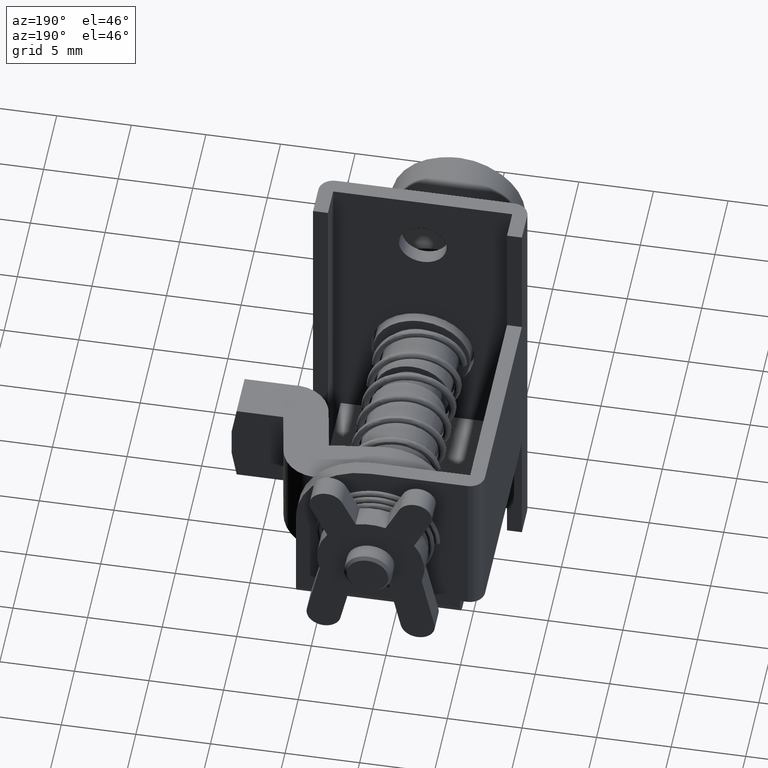
[diagram: clean part render]
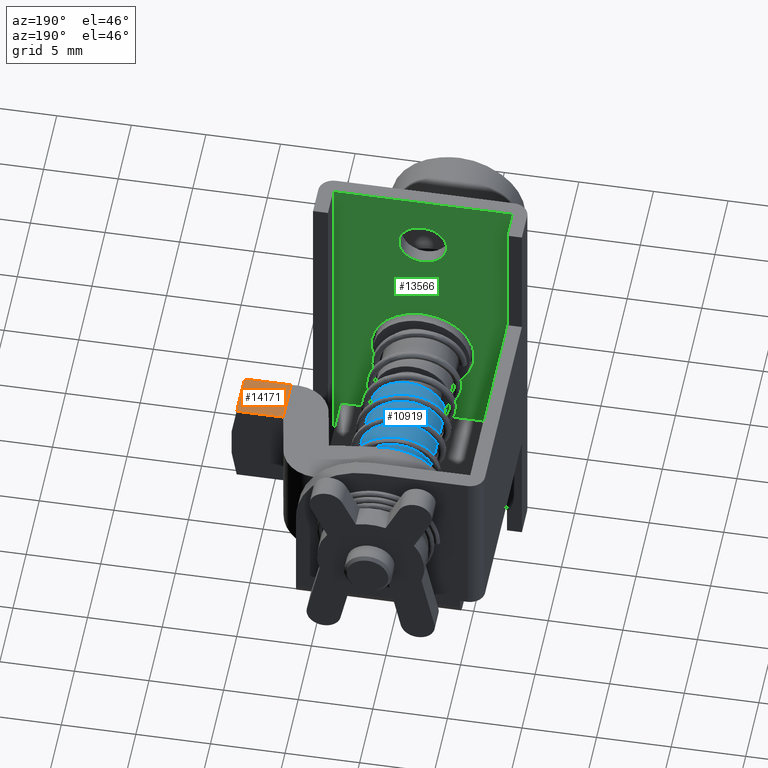
[diagram: same view with three faces highlighted in distinct colors, each labeled with its STEP entity id]
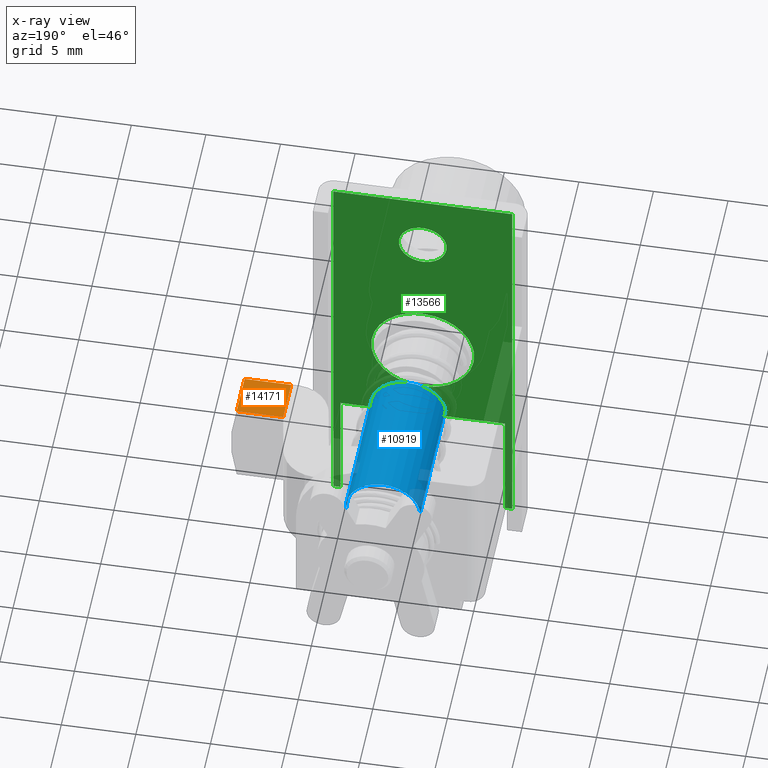
[diagram: x-ray of the same camera — body ghosted, the three highlighted faces saturated]
A machine part, auxiliary view with three faces highlighted in distinct colors.
The next image is the same camera in x-ray (body ghosted, the three faces saturated) — at least one of them is partly hidden behind the body in this view.
Their STEP definitions:

[orange] entity #14171 — the highlighted face is a freeform B-spline surface patch.
#14105=CARTESIAN_POINT('',(8.500000000000000,-10.618950038622319,3.000000000000130));
#14106=VERTEX_POINT('',#14105);
#14107=CARTESIAN_POINT('',(11.500000000000000,-10.618950038622319,3.000000000000130));
#14108=VERTEX_POINT('',#14107);
#14109=CARTESIAN_POINT('',(8.500000000000000,-10.618950038622319,3.000000000000130));
#14110=CARTESIAN_POINT('',(11.500000000000000,-10.618950038622319,3.000000000000130));
#14111=QUASI_UNIFORM_CURVE('',1,(#14109,#14110),.UNSPECIFIED.,.F.,.U.);
#14112=EDGE_CURVE('',#14106,#14108,#14111,.T.);
#14144=CARTESIAN_POINT('',(8.350150005814582,-10.774741440614021,3.000000000000131));
#14145=CARTESIAN_POINT('',(11.649850074651690,-10.774741440614021,3.000000000000131));
#14146=CARTESIAN_POINT('',(8.350150005814582,-7.344208374923612,3.000000000000130));
#14147=CARTESIAN_POINT('',(11.649850074651690,-7.344208374923612,3.000000000000130));
#14148=B_SPLINE_SURFACE_WITH_KNOTS('',1,1,((#14144,#14146),(#14145,#14147)),.UNSPECIFIED.,.F.,.F.,.U.,(2,2),(2,2),(0.0,3.299700068837108),(0.0,3.430533065690405),.UNSPECIFIED.);
#14149=CARTESIAN_POINT('',(8.500000000000000,-7.500000000000110,3.000000000000130));
#14150=VERTEX_POINT('',#14149);
#14151=CARTESIAN_POINT('',(11.500000000000000,-7.500000000000000,3.000000000000115));
#14152=VERTEX_POINT('',#14151);
#14153=CARTESIAN_POINT('',(8.500000000000000,-7.500000000000110,3.000000000000130));
#14154=CARTESIAN_POINT('',(11.500000000000000,-7.500000000000000,3.000000000000115));
#14155=QUASI_UNIFORM_CURVE('',1,(#14153,#14154),.UNSPECIFIED.,.F.,.U.);
#14156=EDGE_CURVE('',#14150,#14152,#14155,.T.);
#14157=ORIENTED_EDGE('',*,*,#14156,.F.);
#14158=CARTESIAN_POINT('',(8.500000000000000,-7.500000000000110,3.000000000000130));
#14159=CARTESIAN_POINT('',(8.500000000000000,-10.618950038622319,3.000000000000130));
#14160=QUASI_UNIFORM_CURVE('',1,(#14158,#14159),.UNSPECIFIED.,.F.,.U.);
#14161=EDGE_CURVE('',#14150,#14106,#14160,.T.);
#14162=ORIENTED_EDGE('',*,*,#14161,.T.);
#14163=ORIENTED_EDGE('',*,*,#14112,.T.);
#14164=CARTESIAN_POINT('',(11.500000000000000,-7.500000000000000,3.000000000000115));
#14165=CARTESIAN_POINT('',(11.500000000000000,-10.618950038622319,3.000000000000130));
#14166=QUASI_UNIFORM_CURVE('',1,(#14164,#14165),.UNSPECIFIED.,.F.,.U.);
#14167=EDGE_CURVE('',#14152,#14108,#14166,.T.);
#14168=ORIENTED_EDGE('',*,*,#14167,.F.);
#14169=EDGE_LOOP('',(#14157,#14162,#14163,#14168));
#14170=FACE_OUTER_BOUND('',#14169,.T.);
#14171=ADVANCED_FACE('',(#14170),#14148,.T.);

[blue] entity #10919 — the highlighted face is a freeform B-spline surface patch.
#10756=CARTESIAN_POINT('',(16.0,2.482523815907322,0.295085586657391));
#10757=VERTEX_POINT('',#10756);
#10775=CARTESIAN_POINT('',(16.0,-2.495336996051754,-0.152621348884807));
#10776=VERTEX_POINT('',#10775);
#10790=CARTESIAN_POINT('',(6.500000000000000,-2.495336996051754,-0.152621348884807));
#10791=VERTEX_POINT('',#10790);
#10792=CARTESIAN_POINT('',(16.0,-2.495336996051754,-0.152621348884807));
#10793=CARTESIAN_POINT('',(6.500000000000000,-2.495336996051754,-0.152621348884807));
#10794=QUASI_UNIFORM_CURVE('',1,(#10792,#10793),.UNSPECIFIED.,.F.,.U.);
#10795=EDGE_CURVE('',#10776,#10791,#10794,.T.);
#10812=CARTESIAN_POINT('',(6.500000000000001,2.482523815907322,0.295085586657391));
#10813=VERTEX_POINT('',#10812);
#10829=CARTESIAN_POINT('',(16.0,2.482523815907322,0.295085586657391));
#10830=CARTESIAN_POINT('',(6.500000000000001,2.482523815907322,0.295085586657391));
#10831=QUASI_UNIFORM_CURVE('',1,(#10829,#10830),.UNSPECIFIED.,.F.,.U.);
#10832=EDGE_CURVE('',#10757,#10813,#10831,.T.);
#10837=CARTESIAN_POINT('',(16.237500000000001,-2.495336996054669,-0.152621348837143));
#10838=CARTESIAN_POINT('',(16.237500000000008,-2.647958344891812,2.342715647217524));
#10839=CARTESIAN_POINT('',(16.237500000000001,-0.152621348837145,2.495336996054667));
#10840=CARTESIAN_POINT('',(16.237500000000008,2.203858727098750,2.639465491831319));
#10841=CARTESIAN_POINT('',(16.237500000000011,2.482523815909164,0.295085586641896));
#10842=CARTESIAN_POINT('',(6.256562500000001,-2.495336996054669,-0.152621348837143));
#10843=CARTESIAN_POINT('',(6.256562500000001,-2.647958344891812,2.342715647217524));
#10844=CARTESIAN_POINT('',(6.256562500000001,-0.152621348837145,2.495336996054667));
#10845=CARTESIAN_POINT('',(6.256562500000004,2.203858727098750,2.639465491831319));
#10846=CARTESIAN_POINT('',(6.256562500000002,2.482523815909164,0.295085586641896));
#10854=(BOUNDED_SURFACE()B_SPLINE_SURFACE(2,1,((#10837,#10842),(#10838,#10843),(#10839,#10844),(#10840,#10845),(#10841,#10846)),.UNSPECIFIED.,.F.,.F.,.U.)B_SPLINE_SURFACE_WITH_KNOTS((3,2,3),(2,2),(0.0,4.142135623730949,8.118585822512660),(0.0,9.980937500000001),.UNSPECIFIED.)GEOMETRIC_REPRESENTATION_ITEM()RATIONAL_B_SPLINE_SURFACE(((1.0,1.0),(0.707106781186548,0.707106781186548),(1.0,1.0),(0.718822509939086,0.718822509939086),(0.977505800795127,0.977505800795127)))REPRESENTATION_ITEM('')SURFACE());
#10855=CARTESIAN_POINT('',(16.0,-1.998558E-015,2.500000000000000));
#10856=VERTEX_POINT('',#10855);
#10857=CARTESIAN_POINT('',(16.0,-1.998558E-015,2.500000000000000));
#10858=CARTESIAN_POINT('',(16.0,2.220436314850502,2.500000000000000));
#10859=CARTESIAN_POINT('',(16.0,2.482523815907322,0.295085586657391));
#10867=(BOUNDED_CURVE()B_SPLINE_CURVE(2,(#10857,#10858,#10859),.UNSPECIFIED.,.F.,.U.)B_SPLINE_CURVE_WITH_KNOTS((3,3),(0.0,0.229562473513535),.UNSPECIFIED.)CURVE()GEOMETRIC_REPRESENTATION_ITEM()RATIONAL_B_SPLINE_CURVE((1.0,0.731050832855372,0.956026754183751))REPRESENTATION_ITEM(''));
#10868=EDGE_CURVE('',#10856,#10757,#10867,.T.);
#10869=ORIENTED_EDGE('',*,*,#10868,.T.);
#10870=ORIENTED_EDGE('',*,*,#10832,.T.);
#10871=CARTESIAN_POINT('',(6.500000000000000,-1.998558E-015,2.500000000000000));
#10872=VERTEX_POINT('',#10871);
#10873=CARTESIAN_POINT('',(6.500000000000000,-1.998558E-015,2.500000000000000));
#10874=CARTESIAN_POINT('',(6.500000000000001,2.220436314850502,2.500000000000000));
#10875=CARTESIAN_POINT('',(6.500000000000001,2.482523815907322,0.295085586657391));
#10883=(BOUNDED_CURVE()B_SPLINE_CURVE(2,(#10873,#10874,#10875),.UNSPECIFIED.,.F.,.U.)B_SPLINE_CURVE_WITH_KNOTS((3,3),(0.0,0.229562473513535),.UNSPECIFIED.)CURVE()GEOMETRIC_REPRESENTATION_ITEM()RATIONAL_B_SPLINE_CURVE((1.0,0.731050832855372,0.956026754183751))REPRESENTATION_ITEM(''));
#10884=EDGE_CURVE('',#10872,#10813,#10883,.T.);
#10885=ORIENTED_EDGE('',*,*,#10884,.F.);
#10886=CARTESIAN_POINT('',(6.500000000000000,-2.495336996051754,-0.152621348884807));
#10887=CARTESIAN_POINT('',(6.500000000000000,-2.500000000000002,-0.076381908294271));
#10888=CARTESIAN_POINT('',(6.500000000000000,-2.500000000000002,0.0));
#10889=CARTESIAN_POINT('',(6.500000000000001,-2.500000000000001,2.500000000000000));
#10890=CARTESIAN_POINT('',(6.500000000000000,-1.998558E-015,2.500000000000000));
#10898=(BOUNDED_CURVE()B_SPLINE_CURVE(2,(#10886,#10887,#10888,#10889,#10890),.UNSPECIFIED.,.F.,.U.)B_SPLINE_CURVE_WITH_KNOTS((3,2,3),(0.739332962235376,0.750000000000000,1.0),.UNSPECIFIED.)CURVE()GEOMETRIC_REPRESENTATION_ITEM()RATIONAL_B_SPLINE_CURVE((0.976072041659074,0.987502787895659,1.0,0.707106781186548,1.0))REPRESENTATION_ITEM(''));
#10899=EDGE_CURVE('',#10791,#10872,#10898,.T.);
#10900=ORIENTED_EDGE('',*,*,#10899,.F.);
#10901=ORIENTED_EDGE('',*,*,#10795,.F.);
#10902=CARTESIAN_POINT('',(16.000000000000004,-2.495336996051754,-0.152621348884807));
#10903=CARTESIAN_POINT('',(16.000000000000007,-2.500000000000002,-0.076381908294271));
#10904=CARTESIAN_POINT('',(16.0,-2.500000000000002,0.0));
#10905=CARTESIAN_POINT('',(15.999999999999998,-2.500000000000001,2.500000000000000));
#10906=CARTESIAN_POINT('',(16.0,-1.998558E-015,2.500000000000000));
#10914=(BOUNDED_CURVE()B_SPLINE_CURVE(2,(#10902,#10903,#10904,#10905,#10906),.UNSPECIFIED.,.F.,.U.)B_SPLINE_CURVE_WITH_KNOTS((3,2,3),(0.739332962235376,0.750000000000000,1.0),.UNSPECIFIED.)CURVE()GEOMETRIC_REPRESENTATION_ITEM()RATIONAL_B_SPLINE_CURVE((0.976072041659074,0.987502787895659,1.0,0.707106781186548,1.0))REPRESENTATION_ITEM(''));
#10915=EDGE_CURVE('',#10776,#10856,#10914,.T.);
#10916=ORIENTED_EDGE('',*,*,#10915,.T.);
#10917=EDGE_LOOP('',(#10869,#10870,#10885,#10900,#10901,#10916));
#10918=FACE_OUTER_BOUND('',#10917,.T.);
#10919=ADVANCED_FACE('',(#10918),#10854,.T.);

[green] entity #13566 — the highlighted face is a freeform B-spline surface patch.
#12305=CARTESIAN_POINT('',(1.0,3.443565054553264,0.210616921673395));
#12306=VERTEX_POINT('',#12305);
#12312=CARTESIAN_POINT('',(1.0,0.0,3.449999460242545));
#12313=VERTEX_POINT('',#12312);
#12314=CARTESIAN_POINT('',(1.0,0.0,3.449999460242545));
#12315=CARTESIAN_POINT('',(1.0,3.245435930757425,3.449999460242544));
#12316=CARTESIAN_POINT('',(1.0,3.443565054553264,0.210616921673395));
#12324=(BOUNDED_CURVE()B_SPLINE_CURVE(2,(#12314,#12315,#12316),.UNSPECIFIED.,.F.,.U.)B_SPLINE_CURVE_WITH_KNOTS((3,3),(0.500000000000000,0.739332962238401),.UNSPECIFIED.)CURVE()GEOMETRIC_REPRESENTATION_ITEM()RATIONAL_B_SPLINE_CURVE((1.0,0.719603993287345,0.976072041665556))REPRESENTATION_ITEM(''));
#12325=EDGE_CURVE('',#12313,#12306,#12324,.T.);
#12327=CARTESIAN_POINT('',(1.0,-3.425882865951193,-0.407218649352348));
#12328=VERTEX_POINT('',#12327);
#12329=CARTESIAN_POINT('',(1.0,-3.425882865951193,-0.407218649352348));
#12330=CARTESIAN_POINT('',(1.0,-3.449999999999999,-0.204323752585928));
#12331=CARTESIAN_POINT('',(1.0,-3.450000000000000,-0.000000539757455));
#12332=CARTESIAN_POINT('',(1.0,-3.450000000000000,3.449999460242546));
#12333=CARTESIAN_POINT('',(1.0,0.0,3.449999460242545));
#12341=(BOUNDED_CURVE()B_SPLINE_CURVE(2,(#12329,#12330,#12331,#12332,#12333),.UNSPECIFIED.,.F.,.U.)B_SPLINE_CURVE_WITH_KNOTS((3,2,3),(0.229562473512776,0.250000000000000,0.500000000000000),.UNSPECIFIED.)CURVE()GEOMETRIC_REPRESENTATION_ITEM()RATIONAL_B_SPLINE_CURVE((0.956026754182263,0.976055948330287,1.0,0.707106781186548,1.0))REPRESENTATION_ITEM(''));
#12342=EDGE_CURVE('',#12328,#12313,#12341,.T.);
#12386=CARTESIAN_POINT('',(1.0,0.0,-3.450000539757455));
#12387=VERTEX_POINT('',#12386);
#12388=CARTESIAN_POINT('',(1.0,0.0,-3.450000539757455));
#12389=CARTESIAN_POINT('',(1.0,-3.064202114479840,-3.450000539757455));
#12390=CARTESIAN_POINT('',(1.0,-3.425882865951193,-0.407218649352348));
#12398=(BOUNDED_CURVE()B_SPLINE_CURVE(2,(#12388,#12389,#12390),.UNSPECIFIED.,.F.,.U.)B_SPLINE_CURVE_WITH_KNOTS((3,3),(0.0,0.229562473512776),.UNSPECIFIED.)CURVE()GEOMETRIC_REPRESENTATION_ITEM()RATIONAL_B_SPLINE_CURVE((1.0,0.731050832856261,0.956026754182263))REPRESENTATION_ITEM(''));
#12399=EDGE_CURVE('',#12387,#12328,#12398,.T.);
#12401=CARTESIAN_POINT('',(1.0,3.443565054553263,0.210616921673395));
#12402=CARTESIAN_POINT('',(1.0,3.450000000000000,0.105406493658370));
#12403=CARTESIAN_POINT('',(1.0,3.450000000000000,-0.000000539757455));
#12404=CARTESIAN_POINT('',(1.0,3.450000000000000,-3.450000539757455));
#12405=CARTESIAN_POINT('',(1.0,0.0,-3.450000539757455));
#12413=(BOUNDED_CURVE()B_SPLINE_CURVE(2,(#12401,#12402,#12403,#12404,#12405),.UNSPECIFIED.,.F.,.U.)B_SPLINE_CURVE_WITH_KNOTS((3,2,3),(0.739332962238401,0.750000000000000,1.0),.UNSPECIFIED.)CURVE()GEOMETRIC_REPRESENTATION_ITEM()RATIONAL_B_SPLINE_CURVE((0.976072041665557,0.987502787899203,1.0,0.707106781186548,1.0))REPRESENTATION_ITEM(''));
#12414=EDGE_CURVE('',#12306,#12387,#12413,.T.);
#12681=CARTESIAN_POINT('',(1.0,1.597015677471434,10.097677941070570));
#12682=VERTEX_POINT('',#12681);
#12688=CARTESIAN_POINT('',(1.0,0.0,11.600000277756701));
#12689=VERTEX_POINT('',#12688);
#12690=CARTESIAN_POINT('',(1.0,0.0,11.600000277756701));
#12691=CARTESIAN_POINT('',(1.0,1.505129706939403,11.600000277756699));
#12692=CARTESIAN_POINT('',(1.0,1.597015677471434,10.097677941070565));
#12700=(BOUNDED_CURVE()B_SPLINE_CURVE(2,(#12690,#12691,#12692),.UNSPECIFIED.,.F.,.U.)B_SPLINE_CURVE_WITH_KNOTS((3,3),(0.500000000000000,0.739332962229415),.UNSPECIFIED.)CURVE()GEOMETRIC_REPRESENTATION_ITEM()RATIONAL_B_SPLINE_CURVE((1.0,0.719603993297873,0.976072041646297))REPRESENTATION_ITEM(''));
#12701=EDGE_CURVE('',#12689,#12682,#12700,.T.);
#12703=CARTESIAN_POINT('',(1.0,-1.588815570308451,9.811148262841046));
#12704=VERTEX_POINT('',#12703);
#12705=CARTESIAN_POINT('',(1.0,-1.588815570308451,9.811148262841048));
#12706=CARTESIAN_POINT('',(1.0,-1.600000000000000,9.905243081172875));
#12707=CARTESIAN_POINT('',(1.0,-1.600000000000000,10.000000277756699));
#12708=CARTESIAN_POINT('',(1.0,-1.600000000000000,11.600000277756697));
#12709=CARTESIAN_POINT('',(1.0,0.0,11.600000277756701));
#12717=(BOUNDED_CURVE()B_SPLINE_CURVE(2,(#12705,#12706,#12707,#12708,#12709),.UNSPECIFIED.,.F.,.U.)B_SPLINE_CURVE_WITH_KNOTS((3,2,3),(0.229562767155487,0.250000000000000,0.500000000000000),.UNSPECIFIED.)CURVE()GEOMETRIC_REPRESENTATION_ITEM()RATIONAL_B_SPLINE_CURVE((0.956027329734803,0.976056292354123,1.0,0.707106781186548,1.0))REPRESENTATION_ITEM(''));
#12718=EDGE_CURVE('',#12704,#12689,#12717,.T.);
#12766=CARTESIAN_POINT('',(1.0,0.0,8.400000277756700));
#12767=VERTEX_POINT('',#12766);
#12768=CARTESIAN_POINT('',(1.0,0.0,8.400000277756700));
#12769=CARTESIAN_POINT('',(1.0,-1.421081728002424,8.400000277756703));
#12770=CARTESIAN_POINT('',(1.0,-1.588815570308451,9.811148262841048));
#12778=(BOUNDED_CURVE()B_SPLINE_CURVE(2,(#12768,#12769,#12770),.UNSPECIFIED.,.F.,.U.)B_SPLINE_CURVE_WITH_KNOTS((3,3),(0.0,0.229562767155487),.UNSPECIFIED.)CURVE()GEOMETRIC_REPRESENTATION_ITEM()RATIONAL_B_SPLINE_CURVE((1.0,0.731050488832425,0.956027329734803))REPRESENTATION_ITEM(''));
#12779=EDGE_CURVE('',#12767,#12704,#12778,.T.);
#12781=CARTESIAN_POINT('',(1.0,1.597015677471434,10.097677941070565));
#12782=CARTESIAN_POINT('',(1.0,1.600000000000000,10.048884699092699));
#12783=CARTESIAN_POINT('',(1.0,1.600000000000000,10.000000277756699));
#12784=CARTESIAN_POINT('',(1.0,1.600000000000000,8.400000277756702));
#12785=CARTESIAN_POINT('',(1.0,0.0,8.400000277756700));
#12793=(BOUNDED_CURVE()B_SPLINE_CURVE(2,(#12781,#12782,#12783,#12784,#12785),.UNSPECIFIED.,.F.,.U.)B_SPLINE_CURVE_WITH_KNOTS((3,2,3),(0.739332962229415,0.750000000000000,1.0),.UNSPECIFIED.)CURVE()GEOMETRIC_REPRESENTATION_ITEM()RATIONAL_B_SPLINE_CURVE((0.976072041646298,0.987502787888675,1.0,0.707106781186548,1.0))REPRESENTATION_ITEM(''));
#12794=EDGE_CURVE('',#12682,#12767,#12793,.T.);
#12941=CARTESIAN_POINT('',(1.0,5.500000000000000,-6.0));
#12942=VERTEX_POINT('',#12941);
#12992=CARTESIAN_POINT('',(1.0,5.500000000000000,-14.0));
#12993=VERTEX_POINT('',#12992);
#12999=CARTESIAN_POINT('',(1.0,5.500000000000000,-14.0));
#13000=CARTESIAN_POINT('',(1.0,5.500000000000000,-6.0));
#13001=QUASI_UNIFORM_CURVE('',1,(#12999,#13000),.UNSPECIFIED.,.F.,.U.);
#13002=EDGE_CURVE('',#12993,#12942,#13001,.T.);
#13074=CARTESIAN_POINT('',(1.0,-5.500000000000000,-6.0));
#13075=VERTEX_POINT('',#13074);
#13076=CARTESIAN_POINT('',(1.0,-5.500000000000000,-6.0));
#13077=CARTESIAN_POINT('',(1.0,5.500000000000000,-6.0));
#13078=QUASI_UNIFORM_CURVE('',1,(#13076,#13077),.UNSPECIFIED.,.F.,.U.);
#13079=EDGE_CURVE('',#13075,#12942,#13078,.T.);
#13229=CARTESIAN_POINT('',(1.0,-6.0,14.000000277756600));
#13230=VERTEX_POINT('',#13229);
#13236=CARTESIAN_POINT('',(1.0,6.0,14.000000277756600));
#13237=VERTEX_POINT('',#13236);
#13238=CARTESIAN_POINT('',(1.0,6.0,14.000000277756600));
#13239=CARTESIAN_POINT('',(1.0,-6.0,14.000000277756600));
#13240=QUASI_UNIFORM_CURVE('',1,(#13238,#13239),.UNSPECIFIED.,.F.,.U.);
#13241=EDGE_CURVE('',#13237,#13230,#13240,.T.);
#13265=CARTESIAN_POINT('',(1.0,6.0,-13.999999722243301));
#13266=VERTEX_POINT('',#13265);
#13272=CARTESIAN_POINT('',(1.0,6.0,-13.999999722243301));
#13273=CARTESIAN_POINT('',(1.0,5.500000000000000,-14.0));
#13274=QUASI_UNIFORM_CURVE('',1,(#13272,#13273),.UNSPECIFIED.,.F.,.U.);
#13275=EDGE_CURVE('',#13266,#12993,#13274,.T.);
#13279=CARTESIAN_POINT('',(1.0,-5.500000000000000,-14.0));
#13280=VERTEX_POINT('',#13279);
#13286=CARTESIAN_POINT('',(1.0,-6.0,-13.999999722243301));
#13287=VERTEX_POINT('',#13286);
#13288=CARTESIAN_POINT('',(1.0,-5.500000000000000,-14.0));
#13289=CARTESIAN_POINT('',(1.0,-6.0,-13.999999722243301));
#13290=QUASI_UNIFORM_CURVE('',1,(#13288,#13289),.UNSPECIFIED.,.F.,.U.);
#13291=EDGE_CURVE('',#13280,#13287,#13290,.T.);
#13523=CARTESIAN_POINT('',(1.0,-6.0,-13.999999722243301));
#13524=CARTESIAN_POINT('',(1.0,-6.0,14.000000277756600));
#13525=QUASI_UNIFORM_CURVE('',1,(#13523,#13524),.UNSPECIFIED.,.F.,.U.);
#13526=EDGE_CURVE('',#13287,#13230,#13525,.T.);
#13531=CARTESIAN_POINT('',(1.0,6.599399976741672,-15.398599959604510));
#13532=CARTESIAN_POINT('',(1.0,-6.599400298606754,-15.398599959604510));
#13533=CARTESIAN_POINT('',(1.0,6.599399976741672,15.398600988379640));
#13534=CARTESIAN_POINT('',(1.0,-6.599400298606754,15.398600988379640));
#13535=B_SPLINE_SURFACE_WITH_KNOTS('',1,1,((#13531,#13533),(#13532,#13534)),.UNSPECIFIED.,.F.,.F.,.U.,(2,2),(2,2),(0.0,13.198800275348431),(0.0,30.797200947984152),.UNSPECIFIED.);
#13536=ORIENTED_EDGE('',*,*,#13291,.F.);
#13537=CARTESIAN_POINT('',(1.0,-5.500000000000000,-14.0));
#13538=CARTESIAN_POINT('',(1.0,-5.500000000000000,-6.0));
#13539=QUASI_UNIFORM_CURVE('',1,(#13537,#13538),.UNSPECIFIED.,.F.,.U.);
#13540=EDGE_CURVE('',#13280,#13075,#13539,.T.);
#13541=ORIENTED_EDGE('',*,*,#13540,.T.);
#13542=ORIENTED_EDGE('',*,*,#13079,.T.);
#13543=ORIENTED_EDGE('',*,*,#13002,.F.);
#13544=ORIENTED_EDGE('',*,*,#13275,.F.);
#13545=CARTESIAN_POINT('',(1.0,6.0,-13.999999722243301));
#13546=CARTESIAN_POINT('',(1.0,6.0,14.000000277756600));
#13547=QUASI_UNIFORM_CURVE('',1,(#13545,#13546),.UNSPECIFIED.,.F.,.U.);
#13548=EDGE_CURVE('',#13266,#13237,#13547,.T.);
#13549=ORIENTED_EDGE('',*,*,#13548,.T.);
#13550=ORIENTED_EDGE('',*,*,#13241,.T.);
#13551=ORIENTED_EDGE('',*,*,#13526,.F.);
#13552=EDGE_LOOP('',(#13536,#13541,#13542,#13543,#13544,#13549,#13550,#13551));
#13553=FACE_OUTER_BOUND('',#13552,.T.);
#13554=ORIENTED_EDGE('',*,*,#12701,.T.);
#13555=ORIENTED_EDGE('',*,*,#12794,.T.);
#13556=ORIENTED_EDGE('',*,*,#12779,.T.);
#13557=ORIENTED_EDGE('',*,*,#12718,.T.);
#13558=EDGE_LOOP('',(#13554,#13555,#13556,#13557));
#13559=FACE_BOUND('',#13558,.T.);
#13560=ORIENTED_EDGE('',*,*,#12325,.T.);
#13561=ORIENTED_EDGE('',*,*,#12414,.T.);
#13562=ORIENTED_EDGE('',*,*,#12399,.T.);
#13563=ORIENTED_EDGE('',*,*,#12342,.T.);
#13564=EDGE_LOOP('',(#13560,#13561,#13562,#13563));
#13565=FACE_BOUND('',#13564,.T.);
#13566=ADVANCED_FACE('',(#13553,#13559,#13565),#13535,.F.);